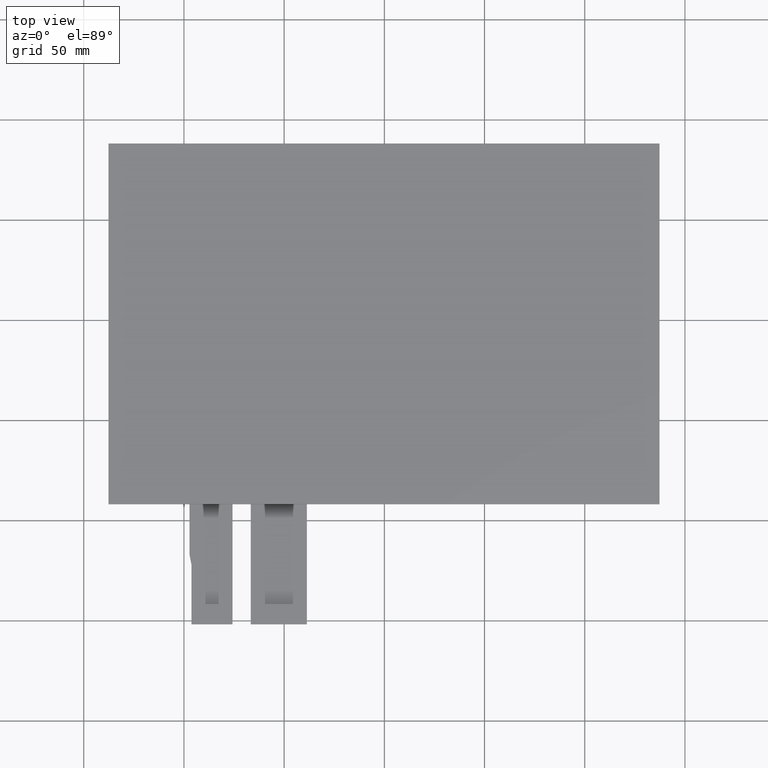
[diagram: clean part render]
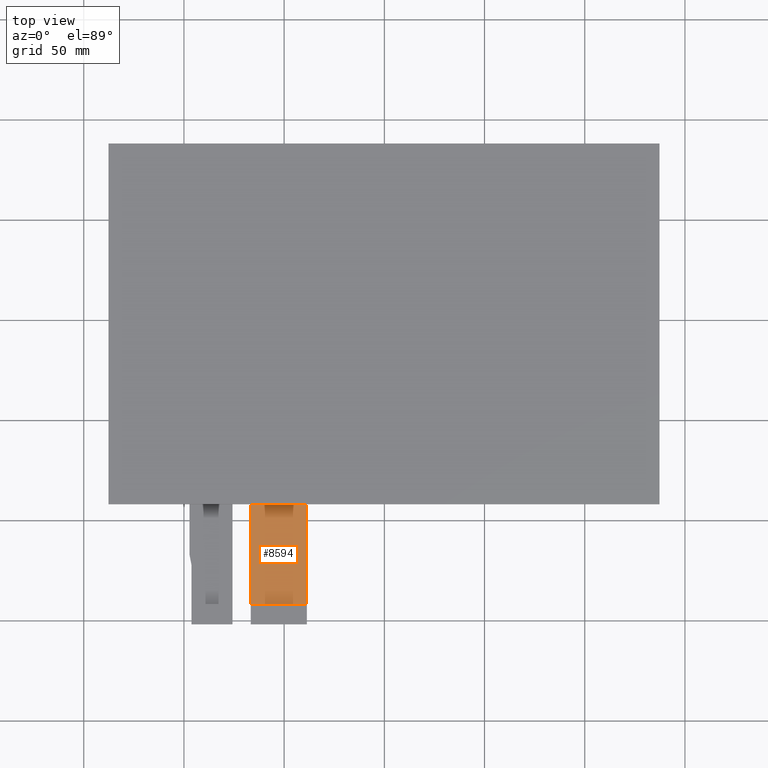
[diagram: same view with one face highlighted and labeled with its STEP entity id]
A machine part, top view. The second image highlights one B-rep face of the part: STEP entity #8594.
In plain terms, the highlighted planar face has unit normal (0, 0, 1).
Its self-contained STEP definition (entity closure, byte-faithful):
#464=PLANE('',#9032);
#874=FACE_OUTER_BOUND('',#1284,.T.);
#1284=EDGE_LOOP('',(#8125,#8126,#8127,#8128));
#2470=LINE('',#13456,#3680);
#2473=LINE('',#13462,#3683);
#2481=LINE('',#13478,#3691);
#2484=LINE('',#13483,#3694);
#3680=VECTOR('',#11018,10.);
#3683=VECTOR('',#11023,10.);
#3691=VECTOR('',#11039,10.);
#3694=VECTOR('',#11044,10.);
#4516=VERTEX_POINT('',#13453);
#4517=VERTEX_POINT('',#13455);
#4519=VERTEX_POINT('',#13461);
#4523=VERTEX_POINT('',#13477);
#5718=EDGE_CURVE('',#4517,#4516,#2470,.T.);
#5721=EDGE_CURVE('',#4519,#4517,#2473,.T.);
#5729=EDGE_CURVE('',#4523,#4519,#2481,.T.);
#5732=EDGE_CURVE('',#4523,#4516,#2484,.T.);
#8125=ORIENTED_EDGE('',*,*,#5721,.T.);
#8126=ORIENTED_EDGE('',*,*,#5718,.T.);
#8127=ORIENTED_EDGE('',*,*,#5732,.F.);
#8128=ORIENTED_EDGE('',*,*,#5729,.T.);
#8594=ADVANCED_FACE('',(#874),#464,.T.);
#9032=AXIS2_PLACEMENT_3D('',#13482,#11042,#11043);
#11018=DIRECTION('',(-1.48029736616688E-16,1.,0.));
#11023=DIRECTION('',(1.,0.,0.));
#11039=DIRECTION('',(1.48029736616688E-16,-1.,0.));
#11042=DIRECTION('center_axis',(0.,0.,1.));
#11043=DIRECTION('ref_axis',(1.,0.,0.));
#11044=DIRECTION('',(1.,6.45947941600091E-17,0.));
#13453=CARTESIAN_POINT('',(-38.6676248782692,-91.85,-1.1));
#13455=CARTESIAN_POINT('',(-38.6676248782692,-141.85,-1.1));
#13456=CARTESIAN_POINT('',(-38.6676248782692,-151.85,-1.1));
#13461=CARTESIAN_POINT('',(-66.6676248782692,-141.85,-1.1));
#13462=CARTESIAN_POINT('',(-45.6676248782692,-141.85,-1.1));
#13477=CARTESIAN_POINT('',(-66.6676248782692,-91.85,-1.1));
#13478=CARTESIAN_POINT('',(-66.6676248782692,-91.85,-1.1));
#13482=CARTESIAN_POINT('Origin',(-52.6676248782692,-121.85,-1.1));
#13483=CARTESIAN_POINT('',(42.3311875608654,-91.85,-1.1));